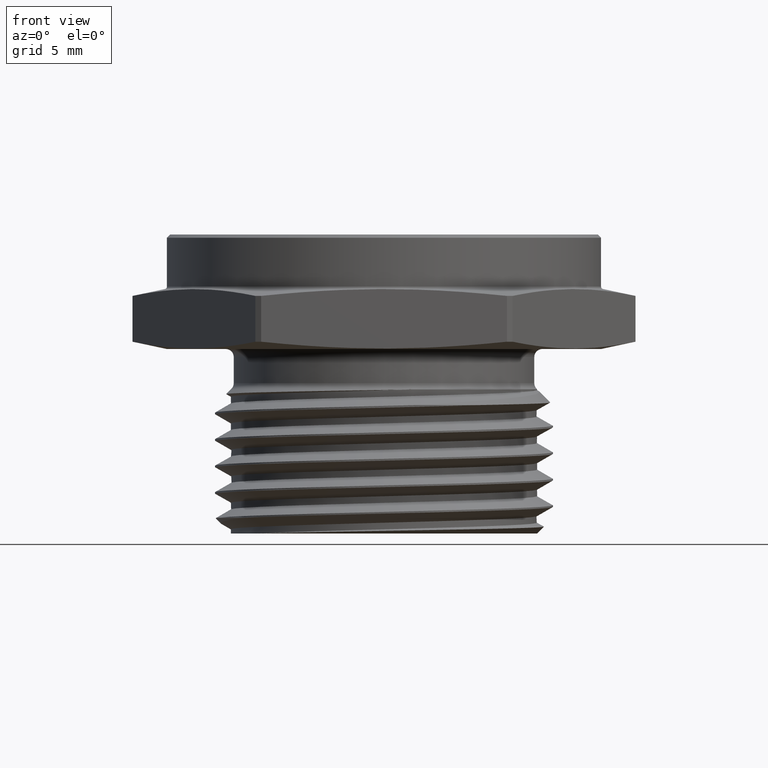
[diagram: clean part render]
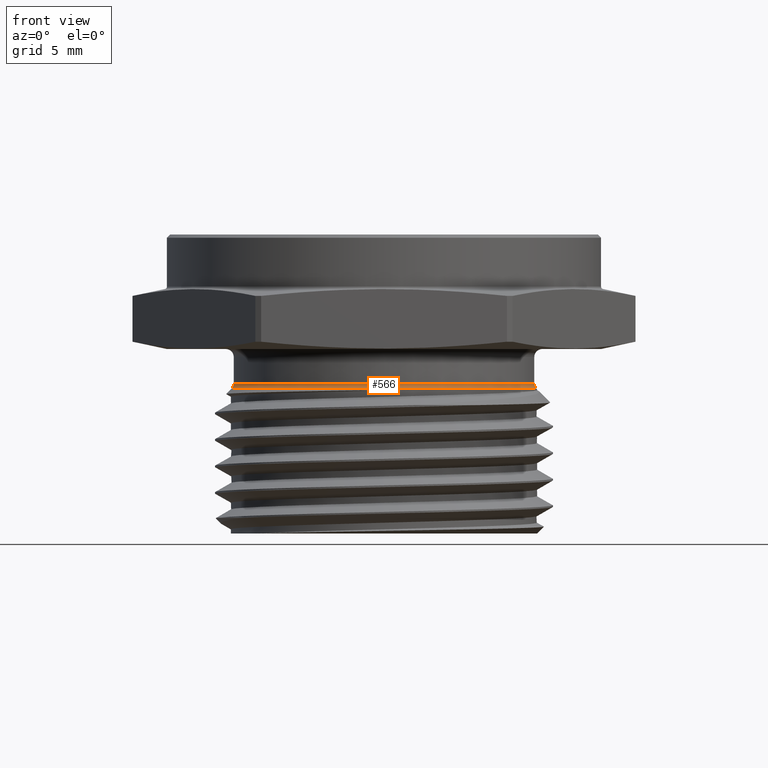
[diagram: same view with one face highlighted and labeled with its STEP entity id]
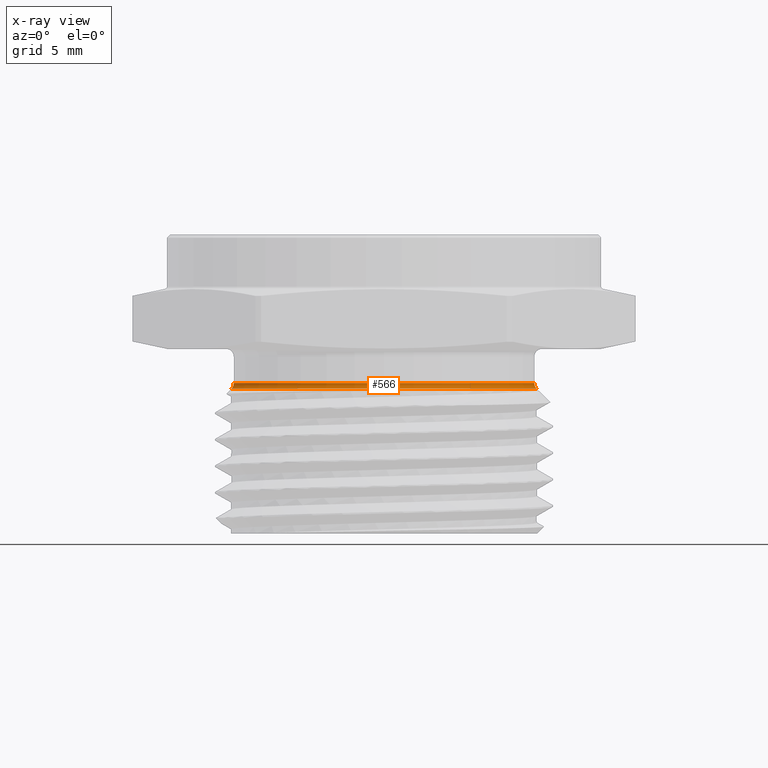
[diagram: x-ray of the same camera — body ghosted, the highlighted face saturated]
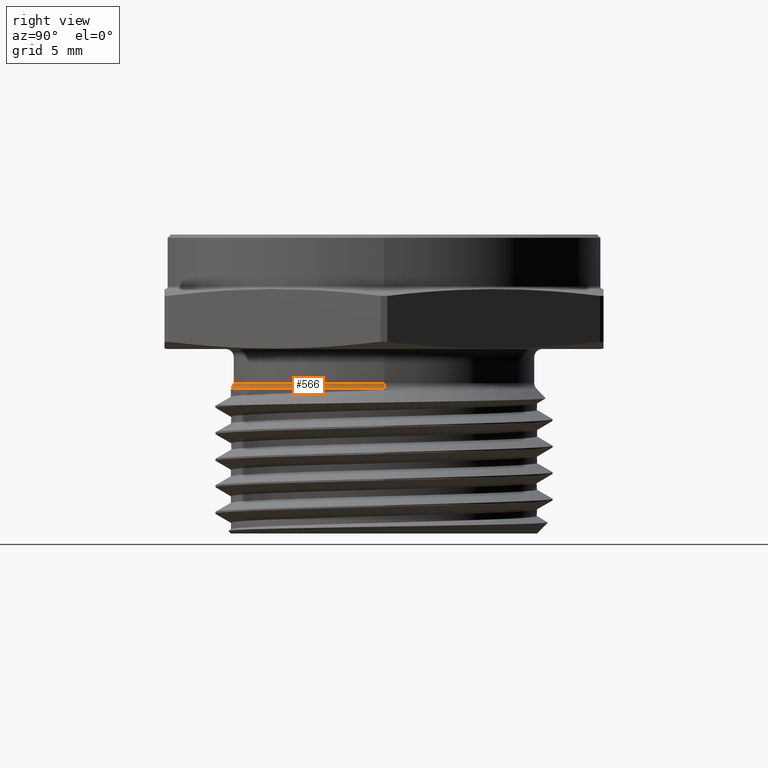
[diagram: same view with one face highlighted and labeled with its STEP entity id]
A machine part, front view. The second image highlights one B-rep face of the part: STEP entity #566.
The next image is the same camera in x-ray: the body ghosted, the highlighted face saturated — about 0% of this face is hidden behind the body in this view.
A second angle (right view) of the same face is appended — the face is thin or edge-on in the first view.
In plain terms, the highlighted toroidal blend (fillet) surface has major radius 12.6365 mm and minor (blend) radius 0.635 mm.
Its self-contained STEP definition (entity closure, byte-faithful):
#566 = ADVANCED_FACE ( 'NONE', ( #809 ), #800, .F. ) ;
#638 = ORIENTED_EDGE ( 'NONE', *, *, #2525, .F. ) ;
#639 = ORIENTED_EDGE ( 'NONE', *, *, #2526, .T. ) ;
#640 = ORIENTED_EDGE ( 'NONE', *, *, #2527, .T. ) ;
#641 = ORIENTED_EDGE ( 'NONE', *, *, #2528, .F. ) ;
#800 = TOROIDAL_SURFACE ( 'NONE', #2673, 0.4974999999999999400, 0.02499999999999999800 ) ;
#809 = FACE_OUTER_BOUND ( 'NONE', #2443, .T. ) ;
#1513 = AXIS2_PLACEMENT_3D ( 'NONE', #2400, #2399, #2398 ) ;
#1514 = AXIS2_PLACEMENT_3D ( 'NONE', #2396, #2395, #2394 ) ;
#1515 = AXIS2_PLACEMENT_3D ( 'NONE', #2393, #2392, #2391 ) ;
#1516 = AXIS2_PLACEMENT_3D ( 'NONE', #2389, #2388, #2387 ) ;
#1838 = CARTESIAN_POINT ( 'NONE',  ( -0.4724999999999999200, 5.831292468835226200E-017, -0.1073223304703362200 ) ) ;
#1874 = CARTESIAN_POINT ( 'NONE',  ( 0.4798223304703362900, 6.191032466084761400E-017, -0.1249999999999999300 ) ) ;
#1908 = CARTESIAN_POINT ( 'NONE',  ( -0.4798223304703362900, 0.0000000000000000000, -0.1249999999999999300 ) ) ;
#2387 = DIRECTION ( 'NONE',  ( 0.0000000000000000000, 0.0000000000000000000, -1.000000000000000000 ) ) ;
#2388 = DIRECTION ( 'NONE',  ( 0.0000000000000000000, -1.000000000000000000, 0.0000000000000000000 ) ) ;
#2389 = CARTESIAN_POINT ( 'NONE',  ( 0.4974999999999999400, 0.0000000000000000000, -0.1073223304703362200 ) ) ;
#2391 = DIRECTION ( 'NONE',  ( 1.000000000000000000, 0.0000000000000000000, 0.0000000000000000000 ) ) ;
#2392 = DIRECTION ( 'NONE',  ( -0.0000000000000000000, -0.0000000000000000000, 1.000000000000000000 ) ) ;
#2393 = CARTESIAN_POINT ( 'NONE',  ( 0.0000000000000000000, 0.0000000000000000000, -0.1249999999999999300 ) ) ;
#2394 = DIRECTION ( 'NONE',  ( -1.000000000000000000, 1.224646799147351700E-016, 0.0000000000000000000 ) ) ;
#2395 = DIRECTION ( 'NONE',  ( 1.224646799147353200E-016, 1.000000000000000000, 0.0000000000000000000 ) ) ;
#2396 = CARTESIAN_POINT ( 'NONE',  ( -0.4974999999999999400, 6.092617825758081700E-017, -0.1073223304703362200 ) ) ;
#2398 = DIRECTION ( 'NONE',  ( 1.000000000000000000, 0.0000000000000000000, 0.0000000000000000000 ) ) ;
#2399 = DIRECTION ( 'NONE',  ( -0.0000000000000000000, -0.0000000000000000000, 1.000000000000000000 ) ) ;
#2400 = CARTESIAN_POINT ( 'NONE',  ( 0.0000000000000000000, 0.0000000000000000000, -0.1073223304703362200 ) ) ;
#2443 = EDGE_LOOP ( 'NONE', ( #638, #639, #640, #641 ) ) ;
#2492 = VERTEX_POINT ( 'NONE', #3094 ) ;
#2525 = EDGE_CURVE ( 'NONE', #2682, #2492, #2840, .T. ) ;
#2526 = EDGE_CURVE ( 'NONE', #2682, #2743, #2857, .T. ) ;
#2527 = EDGE_CURVE ( 'NONE', #2743, #2699, #2855, .T. ) ;
#2528 = EDGE_CURVE ( 'NONE', #2492, #2699, #2859, .T. ) ;
#2673 = AXIS2_PLACEMENT_3D ( 'NONE', #3136, #3137, #3134 ) ;
#2682 = VERTEX_POINT ( 'NONE', #1838 ) ;
#2699 = VERTEX_POINT ( 'NONE', #1874 ) ;
#2743 = VERTEX_POINT ( 'NONE', #1908 ) ;
#2840 = CIRCLE ( 'NONE', #1513, 0.4724999999999999200 ) ;
#2855 = CIRCLE ( 'NONE', #1515, 0.4798223304703362900 ) ;
#2857 = CIRCLE ( 'NONE', #1514, 0.02500000000000000500 ) ;
#2859 = CIRCLE ( 'NONE', #1516, 0.02499999999999999100 ) ;
#3094 = CARTESIAN_POINT ( 'NONE',  ( 0.4724999999999999200, 0.0000000000000000000, -0.1073223304703362200 ) ) ;
#3134 = DIRECTION ( 'NONE',  ( 1.000000000000000000, 0.0000000000000000000, 0.0000000000000000000 ) ) ;
#3136 = CARTESIAN_POINT ( 'NONE',  ( 0.0000000000000000000, 0.0000000000000000000, -0.1073223304703362200 ) ) ;
#3137 = DIRECTION ( 'NONE',  ( -0.0000000000000000000, -0.0000000000000000000, 1.000000000000000000 ) ) ;